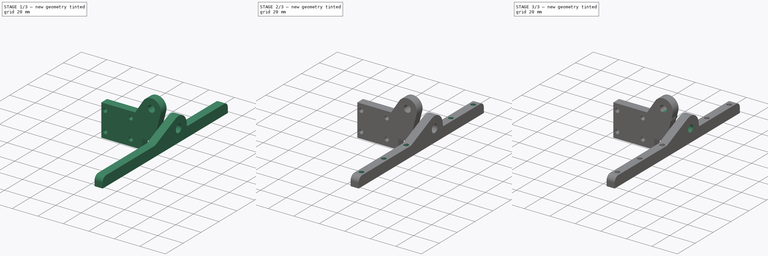
[diagram: build sequence overview — one tinted view per stage of 3, left to right]
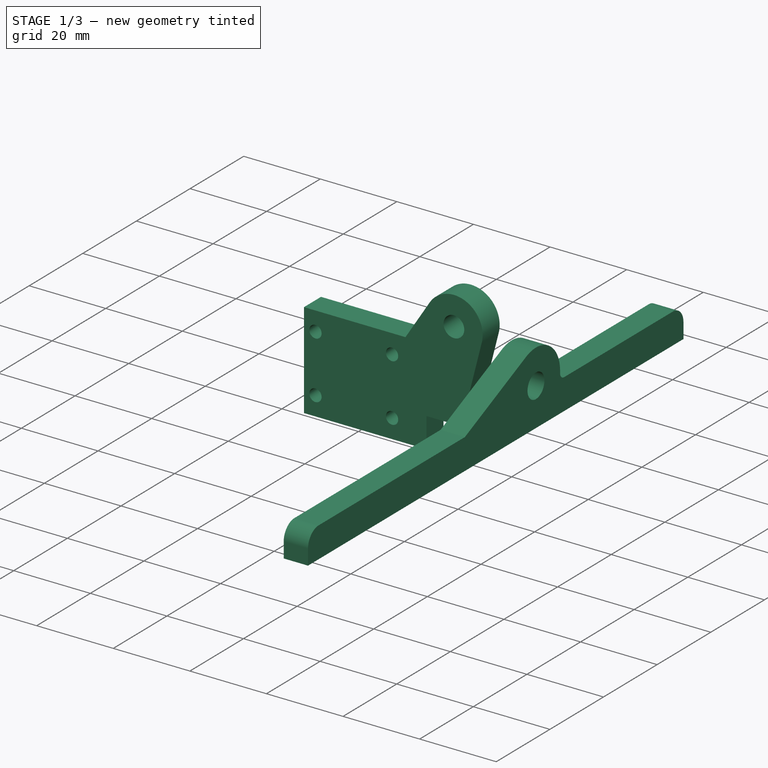
[diagram: stage 1 of 3 — iso view after this stage's code; geometry added in this stage tinted green]
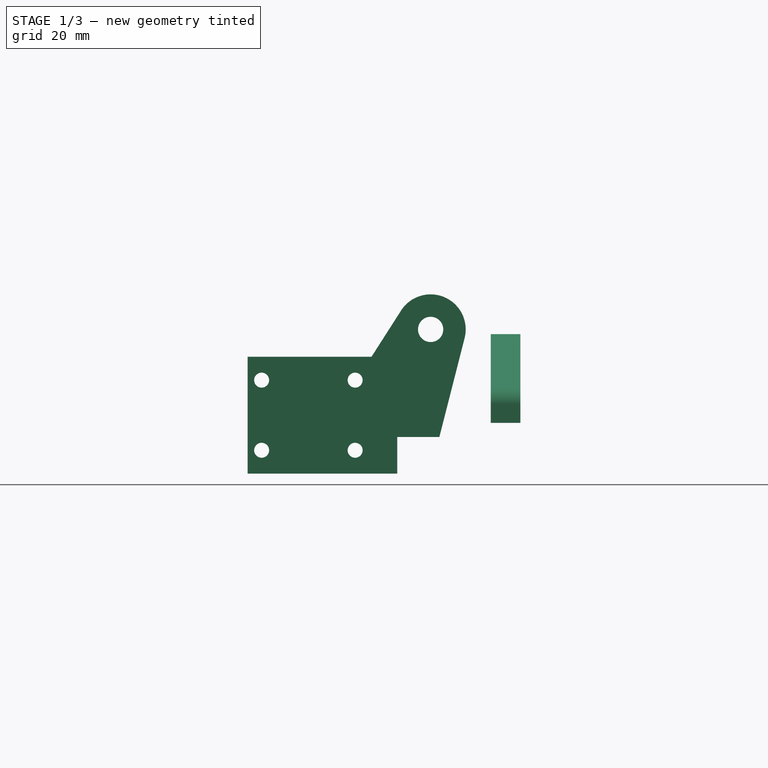
[diagram: stage 1 of 3 — front view after this stage's code; geometry added in this stage tinted green]
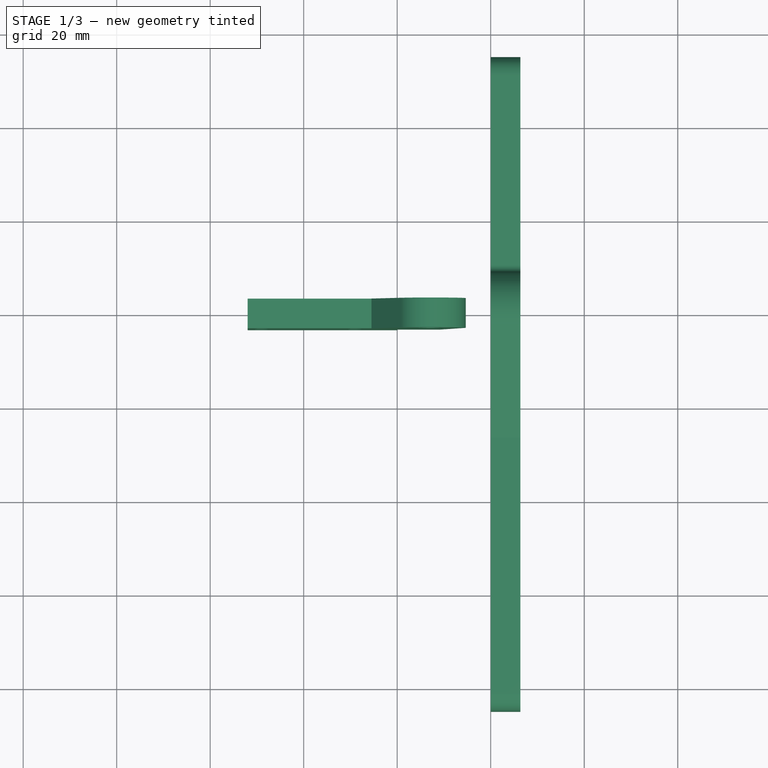
[diagram: stage 1 of 3 — top view after this stage's code; geometry added in this stage tinted green]
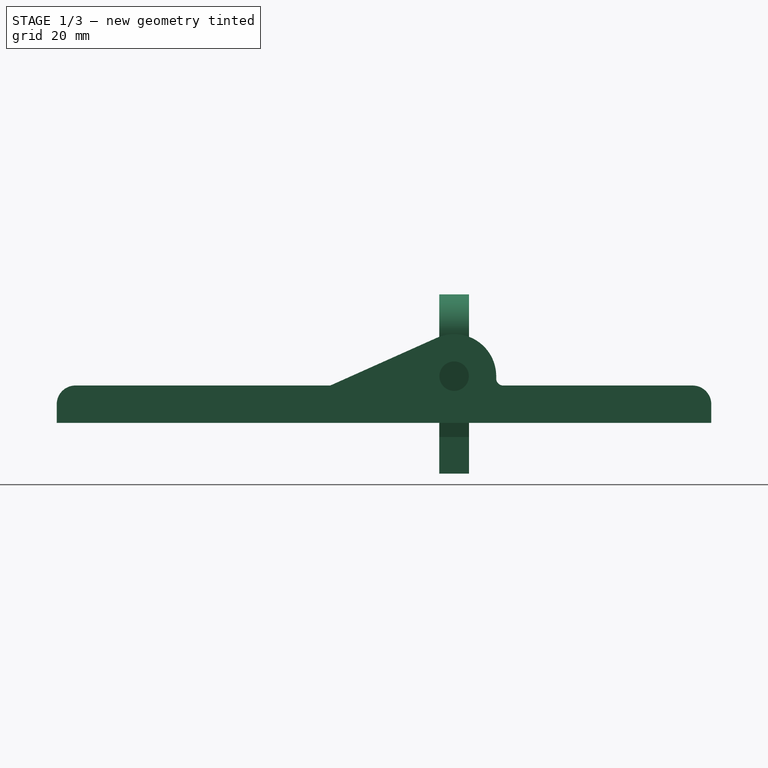
[diagram: stage 1 of 3 — right view after this stage's code; geometry added in this stage tinted green]
FCSTD DOCUMENT  (FreeCAD 0.19R)
Label: BedMount
License: All rights reserved
LicenseURL: http://en.wikipedia.org/wiki/All_rights_reserved
objects: Sketcher::SketchObject×6, PartDesign::Pad×4, PartDesign::Body×4, PartDesign::Pocket×1
note: 20 computed .brp shape members not serialized (recipe doc carries the construction recipe); baked Part::Feature solids carry a one-line shape summary decoded from their .brp

FEATURE [Sketcher::SketchObject] Sketch
  FullyConstrained = false
  MapMode = 5
  Placement = pos=(0,0,0) rot=(0.57735,0.57735,0.57735;2.0944rad)
  Support = -> [YZ_Plane]
  sketch-geometry (17):
    g0: LineSegment StartX=-15 StartY=32.0996 StartZ=0 EndX=-15 EndY=-27.9004 EndZ=0
    g1: LineSegment StartX=55 StartY=0 StartZ=0 EndX=55 EndY=4 EndZ=0
    g2: LineSegment StartX=51 StartY=8 StartZ=0 EndX=10.5 EndY=8 EndZ=0
    g3: LineSegment StartX=-26.4953 StartY=8 StartZ=0 EndX=-81 EndY=8 EndZ=0
    g4: LineSegment StartX=-85 StartY=4 StartZ=0 EndX=-85 EndY=0 EndZ=0
    g5: ArcOfCircle CenterX=0 CenterY=10 CenterZ=0 NormalX=0 NormalY=0 NormalZ=1 AngleXU=0 Radius=9 StartAngle=0 EndAngle=1.99169
    g6: Circle CenterX=0 CenterY=10 CenterZ=0 NormalX=0 NormalY=0 NormalZ=1 AngleXU=0 Radius=3.15
    g7: LineSegment StartX=-85 StartY=0 StartZ=0 EndX=55 EndY=0 EndZ=0
    g8: LineSegment StartX=-26.4953 StartY=8 StartZ=0 EndX=-3.67722 EndY=18.2145 EndZ=0
    g9: LineSegment StartX=-85 StartY=11.5409 StartZ=0 EndX=-85 EndY=8.50152 EndZ=0
    g10: LineSegment StartX=-65 StartY=11.7986 StartZ=0 EndX=-65 EndY=8.61991 EndZ=0
    g11: LineSegment StartX=45 StartY=10.8487 StartZ=0 EndX=45 EndY=7.93263 EndZ=0
    g12: LineSegment StartX=25 StartY=10.7677 StartZ=0 EndX=25 EndY=8.36218 EndZ=0
    g13: LineSegment StartX=9 StartY=10 StartZ=0 EndX=9 EndY=9.5 EndZ=0
    g14: ArcOfCircle CenterX=10.5 CenterY=9.5 CenterZ=0 NormalX=0 NormalY=0 NormalZ=1 AngleXU=0 Radius=1.5 StartAngle=3.14159 EndAngle=4.71239
    g15: ArcOfCircle CenterX=51 CenterY=4 CenterZ=0 NormalX=0 NormalY=0 NormalZ=1 AngleXU=0 Radius=4 StartAngle=0 EndAngle=1.5708
    g16: ArcOfCircle CenterX=-81 CenterY=4 CenterZ=0 NormalX=0 NormalY=0 NormalZ=1 AngleXU=0 Radius=4 StartAngle=1.5708 EndAngle=3.14159
  constraints (39):
    c: Distance(g0) = 60
    c: PointOnObject(g1,g-1)
    c: Symmetric(g4,g1,g0)
    c: Distance(g-1,g0) = 15
    c: Horizontal(g2)
    c: Vertical(g4)
    c: PointOnObject(g5,g-2)
    c: Diameter(g5) = 18
    c: DistanceY(g5) = 10
    c: Vertical(g1)
    c: Coincident(g6,g5)
    c: Diameter(g6) = 6.3
    c: Coincident(g4,g7)
    c: Horizontal(g7)
    c: Horizontal(g3)
    c: Coincident(g8,g3)
    c: Tangent(g8,g5) = 1.5708
    c: Vertical(g9)
    c: Vertical(g11)
    c: Vertical(g10)
    c: Vertical(g12)
    c: Distance(g10,g9) = 20
    c: Distance(g11,g12) = 20
    c: Coincident(g7,g1)
    c: Distance(g7) = 140
    c: Vertical(g13)
    c: Tangent(g13,g5) = 1.5708
    c: Tangent(g2,g14) = 1.5708
    c: Tangent(g13,g14) = -1.5708
    c: Tangent(g2,g15) = -1.5708
    c: Tangent(g1,g15) = -1.5708
    c: Diameter(g15) = 8
    c: Diameter(g14) = 3
    c: Tangent(g4,g16) = -1.5708
    c: Tangent(g3,g16) = -1.5708
    c: Diameter(g16) = 8
    c: DistanceY(g3) = 8
    c: DistanceY(g2) = 8
    c: Distance(g8) = 25
FEATURE [PartDesign::Pad] Pad  label="BedSupport"
  Direction = (1,1,1)
  Length = 6.35
  Length2 = 100
  Placement = pos=(0,0,0) rot=(0.57735,0.57735,0.57735;2.0944rad)
  Profile = -> Sketch
  Type = 0
FEATURE [PartDesign::Body] Body002
  Group = -> [Sketch002,Pad002]
  Origin = -> Origin002
  Tip = -> Pad002
FEATURE [Sketcher::SketchObject] Sketch003
  FullyConstrained = true
  MapMode = 5
  Placement = pos=(0,0,0) rot=(1,0,0;1.5708rad)
  Support = -> [XZ_Plane003]
  sketch-geometry (28):
    g0: Circle CenterX=-12.85 CenterY=20 CenterZ=0 NormalX=0 NormalY=0 NormalZ=1 AngleXU=0 Radius=2.7
    g1: ArcOfCircle CenterX=-12.85 CenterY=20 CenterZ=0 NormalX=0 NormalY=0 NormalZ=1 AngleXU=0 Radius=7.5 StartAngle=6.03331 EndAngle=8.85536
    g2: LineSegment StartX=-19.1666 StartY=24.0436 StartZ=0 EndX=-25.5 EndY=14.15 EndZ=0
    g3: LineSegment StartX=-58 StartY=50 StartZ=0 EndX=-20 EndY=50 EndZ=0
    g4: LineSegment StartX=-20 StartY=50 StartZ=0 EndX=-20 EndY=-50 EndZ=0
    g5: LineSegment StartX=-20 StartY=-50 StartZ=0 EndX=-58 EndY=-50 EndZ=0
    g6: LineSegment StartX=-58 StartY=-50 StartZ=0 EndX=-58 EndY=50 EndZ=0
    g7: Circle CenterX=-12.85 CenterY=20 CenterZ=0 NormalX=0 NormalY=0 NormalZ=1 AngleXU=0 Radius=7.5
    g8: Circle CenterX=-49 CenterY=9.15 CenterZ=0 NormalX=0 NormalY=0 NormalZ=1 AngleXU=0 Radius=1.6
    g9: Circle CenterX=-29 CenterY=9.15 CenterZ=0 NormalX=0 NormalY=0 NormalZ=1 AngleXU=0 Radius=1.6
    g10: Circle CenterX=-49 CenterY=-5.85 CenterZ=0 NormalX=0 NormalY=0 NormalZ=1 AngleXU=0 Radius=1.6
    g11: Circle CenterX=-29 CenterY=-5.85 CenterZ=0 NormalX=0 NormalY=0 NormalZ=1 AngleXU=0 Radius=1.6
    g12: LineSegment StartX=-49 StartY=9.15 StartZ=0 EndX=-29 EndY=9.15 EndZ=0
    g13: LineSegment StartX=-29 StartY=9.15 StartZ=0 EndX=-29 EndY=-5.85 EndZ=0
    g14: LineSegment StartX=-29 StartY=-5.85 StartZ=0 EndX=-49 EndY=-5.85 EndZ=0
    g15: LineSegment StartX=-49 StartY=-5.85 StartZ=0 EndX=-49 EndY=9.15 EndZ=0
    g16: LineSegment StartX=-52.5 StartY=19 StartZ=0 EndX=-25.5 EndY=19 EndZ=0
    g17: LineSegment StartX=-25.5 StartY=19 StartZ=0 EndX=-25.5 EndY=-15.7 EndZ=0
    g18: LineSegment StartX=-25.5 StartY=-15.7 StartZ=0 EndX=-52.5 EndY=-15.7 EndZ=0
    g19: LineSegment StartX=-52.5 StartY=-15.7 StartZ=0 EndX=-52.5 EndY=19 EndZ=0
    g20: Circle CenterX=-39 CenterY=1.65 CenterZ=0 NormalX=0 NormalY=0 NormalZ=1 AngleXU=0 Radius=0.515
    g21: LineSegment StartX=-39 StartY=1.65 StartZ=0 EndX=-39 EndY=76.65 EndZ=0
    g22: LineSegment StartX=-52 StartY=14.15 StartZ=0 EndX=-25.5 EndY=14.15 EndZ=0
    g23: LineSegment StartX=-52 StartY=-10.85 StartZ=0 EndX=-20 EndY=-10.85 EndZ=0
    g24: LineSegment StartX=-52 StartY=14.15 StartZ=0 EndX=-52 EndY=-10.85 EndZ=0
    g25: LineSegment StartX=-5.58292 StartY=18.1454 StartZ=0 EndX=-10.9794 EndY=-3 EndZ=0
    g26: LineSegment StartX=-10.9794 StartY=-3 StartZ=0 EndX=-20 EndY=-3 EndZ=0
    g27: LineSegment StartX=-20 StartY=-3 StartZ=0 EndX=-20 EndY=-10.85 EndZ=0
  constraints (73):
    c: DistanceY(g0) = 20
    c: DistanceX(g0) = -12.85
    c: Coincident(g1,g0)
    c: Tangent(g1,g2) = -1.5708
    c: Diameter(g1) = 15
    c: Coincident(g3,g4)
    c: Coincident(g4,g5)
    c: Coincident(g5,g6)
    c: Coincident(g6,g3)
    c: Horizontal(g3)
    c: Vertical(g6)
    c: Distance(g3) = 38
    c: Coincident(g7,g0)
    c: Diameter(g7) = 15
    c: DistanceX(g4) = -20
    c: Coincident(g12,g8)
    c: Coincident(g12,g9)
    c: Horizontal(g12)
    c: Coincident(g12,g13)
    c: Coincident(g13,g11)
    c: Coincident(g13,g14)
    c: Coincident(g14,g10)
    c: Coincident(g14,g15)
    c: Coincident(g15,g12)
    c: Equal(g12,g14)
    c: Equal(g13,g15)
    c: Vertical(g13)
    c: Diameter(g11) = 3.2
    c: Equal(g11,g9)
    c: Equal(g11,g8)
    c: Equal(g11,g10)
    c: Distance(g12) = 20
    c: Distance(g13) = 15
    c: Coincident(g16,g17)
    c: Coincident(g17,g18)
    c: Coincident(g18,g19)
    c: Coincident(g19,g16)
    c: Horizontal(g16)
    c: Horizontal(g18)
    c: Vertical(g17)
    c: Vertical(g19)
    c: Distance(g18) = 27
    c: Distance(g17) = 34.7
    c: Distance(g4) = 100
    c: Symmetric(g4,g3,g-1)
    c: Symmetric(g11,g8,g20)
    c: Symmetric(g17,g16,g20)
    c: DistanceY(g16) = 19
    c: Horizontal(g5)
    c: Coincident(g21,g20)
    c: Symmetric(g3,g3,g21)
    c: Distance(g21) = 75
    c: Diameter(g20) = 1.03
    c: Horizontal(g22)
    c: Horizontal(g23)
    c: Coincident(g2,g22)
    c: Distance(g9,g22) = 5
    c: Distance(g11,g23) = 5
    c: PointOnObject(g2,g17)
    c: DistanceX(g22,g8) = 3
    c: Diameter(g0) = 5.4
    c: Coincident(g22,g24)
    c: Vertical(g24)
    c: DistanceX(g23,g10) = 3
    c: Coincident(g24,g23)
    c: Tangent(g1,g25) = 1.5708
    c: Coincident(g25,g26)
    c: PointOnObject(g26,g4)
    c: Horizontal(g26)
    c: Coincident(g26,g27)
    c: PointOnObject(g27,g4)
    c: Coincident(g23,g27)
    c: DistanceY(g26) = -3
FEATURE [PartDesign::Pad] Pad003
  Direction = (1,1,1)
  Length = 6.35
  Length2 = 100
  Midplane = true
  Placement = pos=(0,0,0) rot=(1,0,0;1.5708rad)
  Profile = -> Sketch003
  Reversed = true
  Type = 0
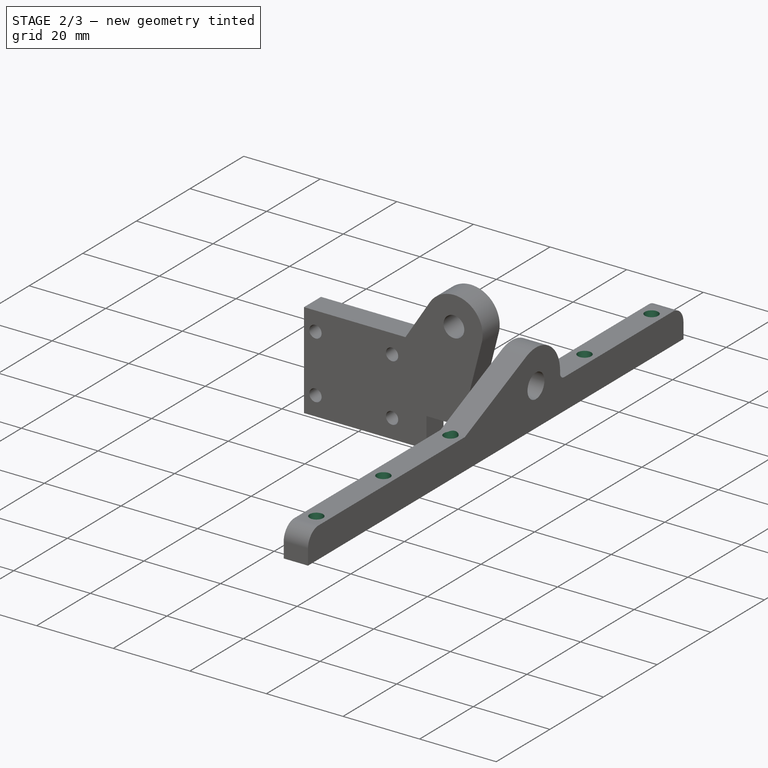
[diagram: stage 2 of 3 — iso view after this stage's code; geometry added in this stage tinted green]
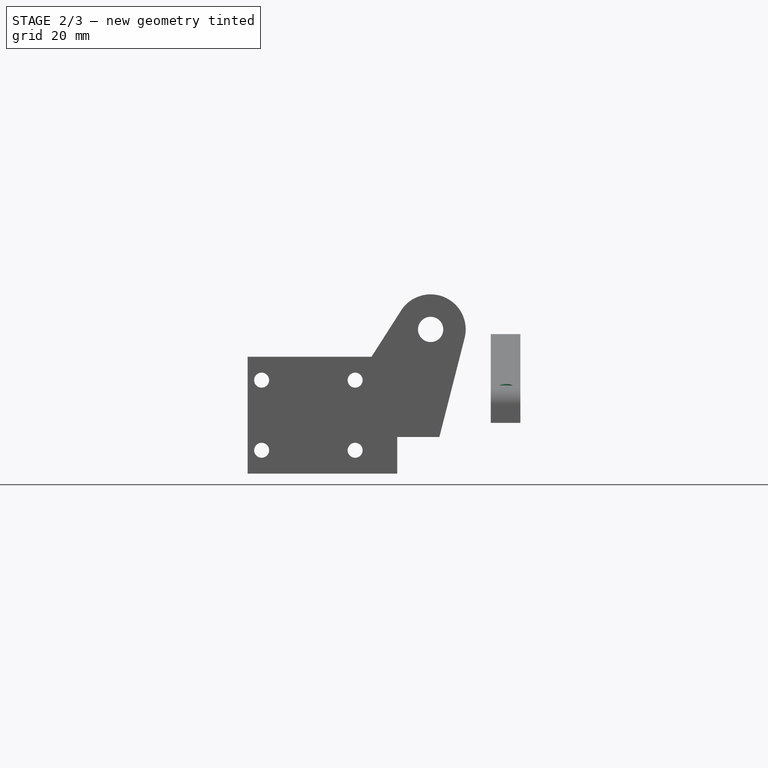
[diagram: stage 2 of 3 — front view after this stage's code; geometry added in this stage tinted green]
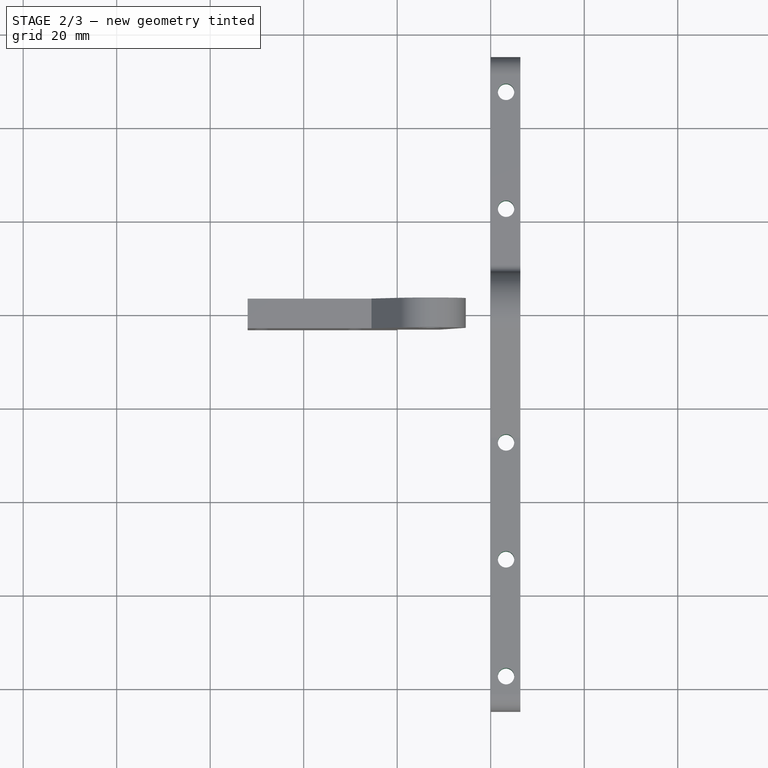
[diagram: stage 2 of 3 — top view after this stage's code; geometry added in this stage tinted green]
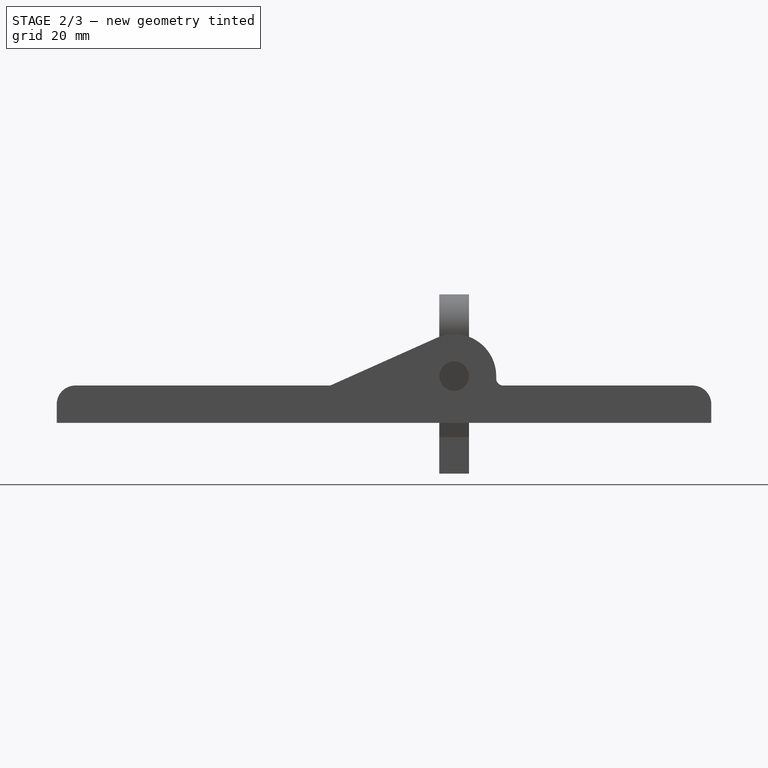
[diagram: stage 2 of 3 — right view after this stage's code; geometry added in this stage tinted green]
FEATURE [Sketcher::SketchObject] Sketch004
  FullyConstrained = false
  MapMode = 5
  Placement = pos=(0,0,0) rot=(0.707107,0.707107,0;3.14159rad)
  Support = -> [Pad]
  sketch-geometry (6):
    g0: Circle CenterX=-77.5 CenterY=3.28 CenterZ=0 NormalX=0 NormalY=0 NormalZ=1 AngleXU=0 Radius=1.75
    g1: Circle CenterX=-52.5 CenterY=3.28 CenterZ=0 NormalX=0 NormalY=0 NormalZ=1 AngleXU=0 Radius=1.75
    g2: Circle CenterX=-27.5 CenterY=3.28 CenterZ=0 NormalX=0 NormalY=0 NormalZ=1 AngleXU=0 Radius=1.75
    g3: Circle CenterX=47.5 CenterY=3.28 CenterZ=0 NormalX=0 NormalY=0 NormalZ=1 AngleXU=0 Radius=1.75
    g4: Circle CenterX=22.5 CenterY=3.28 CenterZ=0 NormalX=0 NormalY=0 NormalZ=1 AngleXU=0 Radius=1.75
    g5: LineSegment StartX=-15 StartY=26.8347 StartZ=0 EndX=-15 EndY=-18.7182 EndZ=0
  constraints (13):
    c: DistanceY(g0) = 3.28
    c: DistanceY(g1) = 3.28
    c: DistanceY(g2) = 3.28
    c: DistanceY(g4) = 3.28
    c: Equal(g0, g1-g4) x4
    c: Diameter(g1) = 3.5
    c: DistanceX(g4,g3) = 25
    c: Distance(g0,g1) = 25
    c: Distance(g1,g2) = 25
    c: Distance(g4,g2) = 50
    c: Vertical(g5)
    c: DistanceX(g5) = -15
    c: Symmetric(g0,g3,g5)
FEATURE [PartDesign::Pocket] Pocket
  BaseFeature = -> Pad
  Length = 5
  Length2 = 100
  Placement = pos=(0,0,0) rot=(0.57735,0.57735,0.57735;2.0944rad)
  Profile = -> Sketch004
  Type = 1
FEATURE [PartDesign::Body] Body
  Group = -> [Sketch,Pad,Sketch004,Pocket]
  Origin = -> Origin
  Tip = -> Pocket
FEATURE [Sketcher::SketchObject] Sketch005
  FullyConstrained = false
  MapMode = 5
  Placement = pos=(0,-3.175,0) rot=(1,0,0;1.5708rad)
  Support = -> [Pad003]
  sketch-geometry (5):
    g0: LineSegment StartX=-20 StartY=-3 StartZ=0 EndX=-5.70339 EndY=-3 EndZ=0
    g1: LineSegment StartX=-5.70339 StartY=-3 StartZ=0 EndX=-5.70339 EndY=-14.8209 EndZ=0
    g2: LineSegment StartX=-5.70339 StartY=-14.8209 StartZ=0 EndX=-20 EndY=-14.8209 EndZ=0
    g3: LineSegment StartX=-20 StartY=-14.8209 StartZ=0 EndX=-20 EndY=-3 EndZ=0
    g4: LineSegment StartX=-39 StartY=20.665 StartZ=0 EndX=-39 EndY=-25.8278 EndZ=0
  constraints (10):
    c: Coincident(g0,g1)
    c: Coincident(g1,g2)
    c: Coincident(g2,g3)
    c: Coincident(g3,g0)
    c: Horizontal(g0)
    c: Horizontal(g2)
    c: Vertical(g1)
    c: Vertical(g3)
    c: Distance(g0,g4) = 19
    c: DistanceY(g0) = -3
FEATURE [PartDesign::Body] Body003  label="MGNMount"
  Group = -> [Sketch003,Pad003,Sketch005]
  Origin = -> Origin003
  Placement = pos=(-0.5,6.35,-10) rot=(0,0,1;0rad)
  Tip = -> Pad003
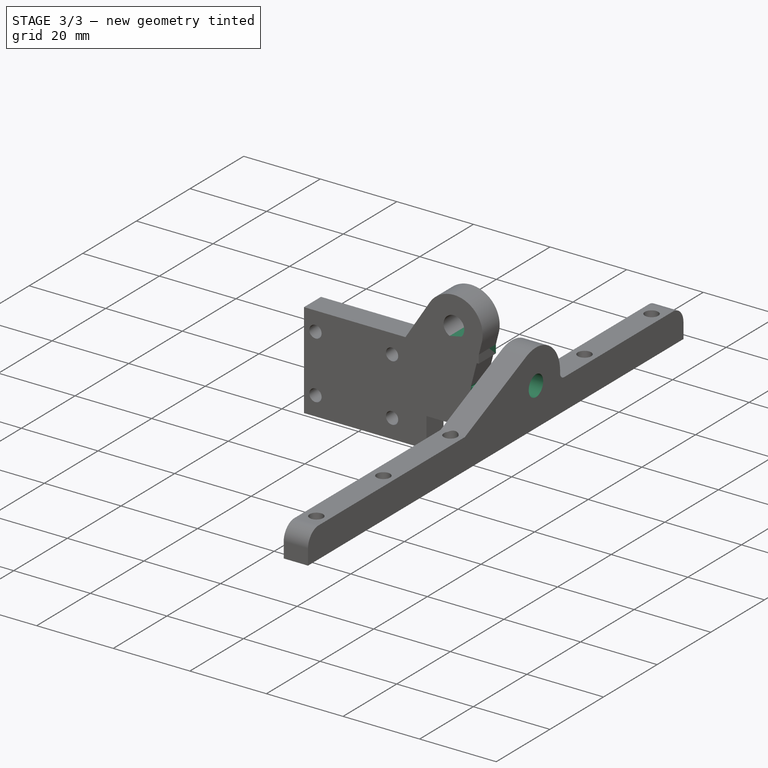
[diagram: stage 3 of 3 — iso view after this stage's code; geometry added in this stage tinted green]
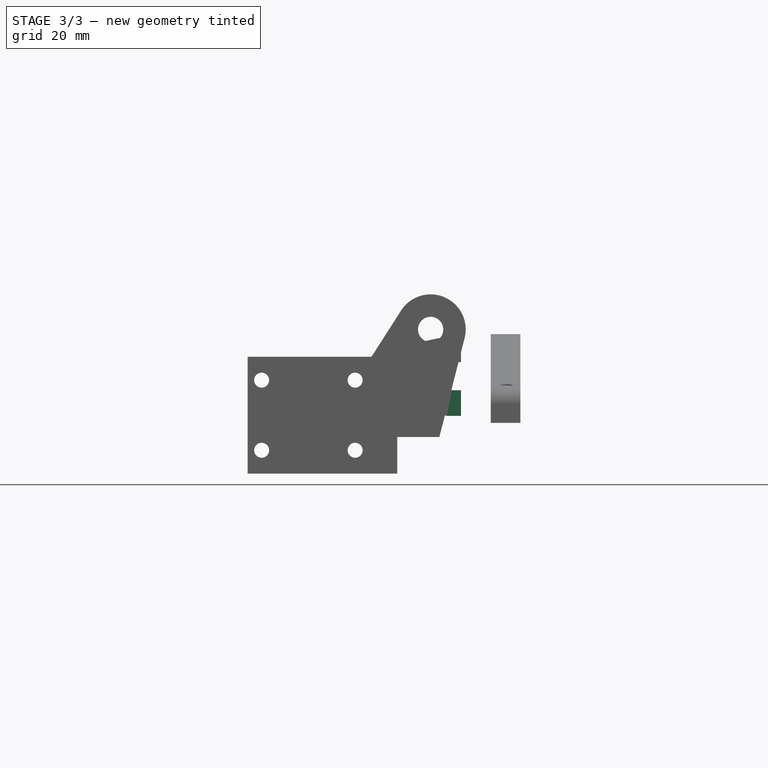
[diagram: stage 3 of 3 — front view after this stage's code; geometry added in this stage tinted green]
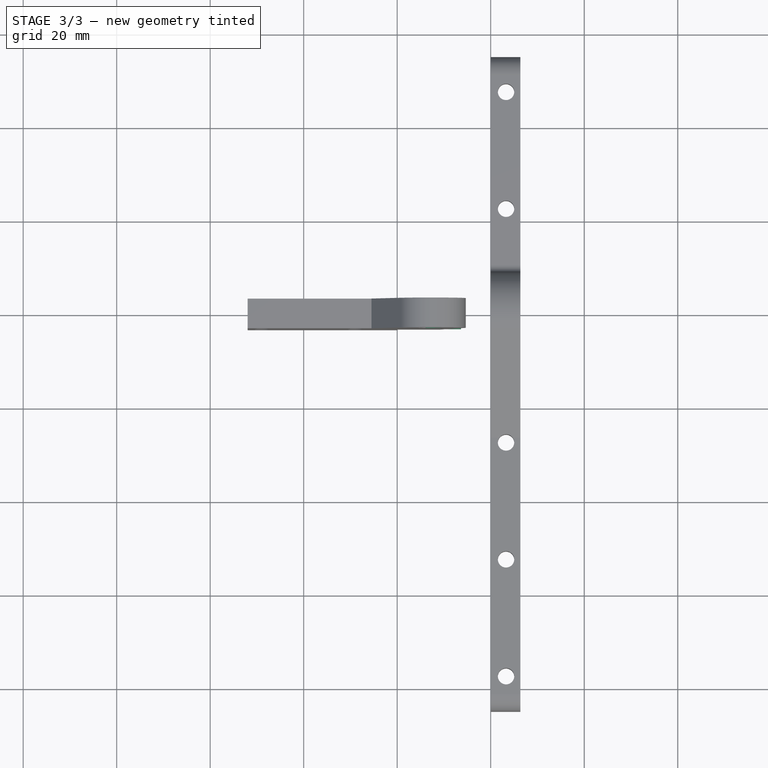
[diagram: stage 3 of 3 — top view after this stage's code; geometry added in this stage tinted green]
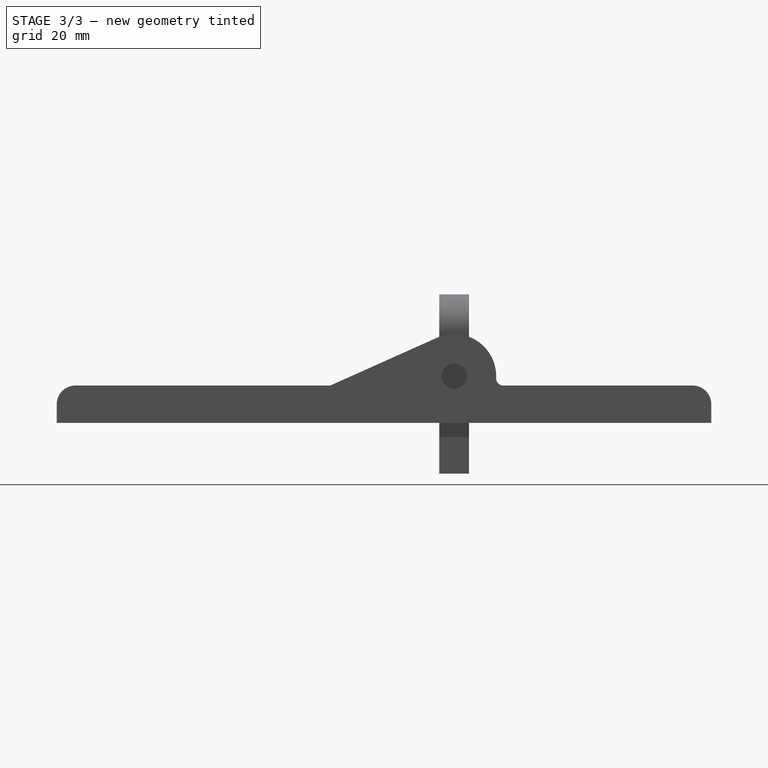
[diagram: stage 3 of 3 — right view after this stage's code; geometry added in this stage tinted green]
FEATURE [Sketcher::SketchObject] Sketch001
  FullyConstrained = true
  MapMode = 5
  Placement = pos=(0,0,0) rot=(0.57735,0.57735,0.57735;2.0944rad)
  Support = -> [YZ_Plane001]
  sketch-geometry (2):
    g0: Circle CenterX=0 CenterY=10 CenterZ=0 NormalX=0 NormalY=0 NormalZ=1 AngleXU=0 Radius=9
    g1: Circle CenterX=0 CenterY=10 CenterZ=0 NormalX=0 NormalY=0 NormalZ=1 AngleXU=0 Radius=2.7
  constraints (5):
    c: PointOnObject(g0,g-2)
    c: Diameter(g0) = 18
    c: DistanceY(g0) = 10
    c: Coincident(g1,g0)
    c: Diameter(g1) = 5.4
FEATURE [PartDesign::Pad] Pad001  label="Washer"
  Direction = (1,1,1)
  Length = 6.35
  Length2 = 100
  Placement = pos=(0,0,0) rot=(0.57735,0.57735,0.57735;2.0944rad)
  Profile = -> Sketch001
  Type = 0
FEATURE [PartDesign::Body] Body001  label="washer"
  Group = -> [Sketch001,Pad001]
  Origin = -> Origin001
  Placement = pos=(-6.35,0,0) rot=(0,0,1;0rad)
  Tip = -> Pad001
FEATURE [Sketcher::SketchObject] Sketch002
  FullyConstrained = true
  MapMode = 5
  Placement = pos=(0,0,0) rot=(1,0,0;1.5708rad)
  Support = -> [XZ_Plane002]
  sketch-geometry (11):
    g0: LineSegment StartX=-6.35 StartY=18.5 StartZ=0 EndX=-9.35 EndY=18.5 EndZ=0
    g1: LineSegment StartX=-9.35 StartY=18.5 StartZ=0 EndX=-14.8868 EndY=17.3409 EndZ=0
    g2: LineSegment StartX=-14.8868 StartY=2.65914 StartZ=0 EndX=-9.35 EndY=1.5 EndZ=0
    g3: LineSegment StartX=-9.35 StartY=1.5 StartZ=0 EndX=-6.35 EndY=1.5 EndZ=0
    g4: LineSegment StartX=-6.35 StartY=18.5 StartZ=0 EndX=-6.35 EndY=13 EndZ=0
    g5: LineSegment StartX=-6.35 StartY=1.5 StartZ=0 EndX=-6.35 EndY=7 EndZ=0
    g6: ArcOfCircle CenterX=-13.35 CenterY=10 CenterZ=0 NormalX=0 NormalY=0 NormalZ=1 AngleXU=0 Radius=7.5 StartAngle=1.77717 EndAngle=4.50602
    g7: Circle CenterX=-13.35 CenterY=10 CenterZ=0 NormalX=0 NormalY=0 NormalZ=1 AngleXU=0 Radius=3.1
    g8: LineSegment StartX=-6.35 StartY=13 StartZ=0 EndX=-8.35 EndY=13 EndZ=0
    g9: LineSegment StartX=-8.35 StartY=13 StartZ=0 EndX=-8.35 EndY=7 EndZ=0
    g10: LineSegment StartX=-8.35 StartY=7 StartZ=0 EndX=-6.35 EndY=7 EndZ=0
  constraints (31):
    c: Horizontal(g0)
    c: Coincident(g0,g1)
    c: Coincident(g2,g3)
    c: Coincident(g0,g4)
    c: Vertical(g4)
    c: Coincident(g3,g5)
    c: Vertical(g5)
    c: Coincident(g7,g6)
    c: Diameter(g7) = 6.2
    c: Diameter(g6) = 15
    c: Tangent(g1,g6) = -1.5708
    c: Tangent(g2,g6) = -1.5708
    c: DistanceY(g6) = 10
    c: Coincident(g4,g8)
    c: Coincident(g8,g9)
    c: Vertical(g9)
    c: Coincident(g9,g10)
    c: Coincident(g10,g5)
    c: Horizontal(g3)
    c: Distance(g0,g3) = 17
    c: Equal(g5,g4)
    c: Horizontal(g10)
    c: Horizontal(g8)
    c: Distance(g8) = 2
    c: DistanceX(g3) = -6.35
    c: DistanceX(g0) = -6.35
    c: Distance(g9) = 6
    c: Distance(g0) = 3
    c: Distance(g3) = 3
    c: DistanceX(g6,g0) = 7
    c: DistanceY(g3) = 1.5
FEATURE [PartDesign::Pad] Pad002  label="Yoke"
  Direction = (1,1,1)
  Length = 6.35
  Length2 = 100
  Midplane = true
  Placement = pos=(0,0,0) rot=(1,0,0;1.5708rad)
  Profile = -> Sketch002
  Type = 0
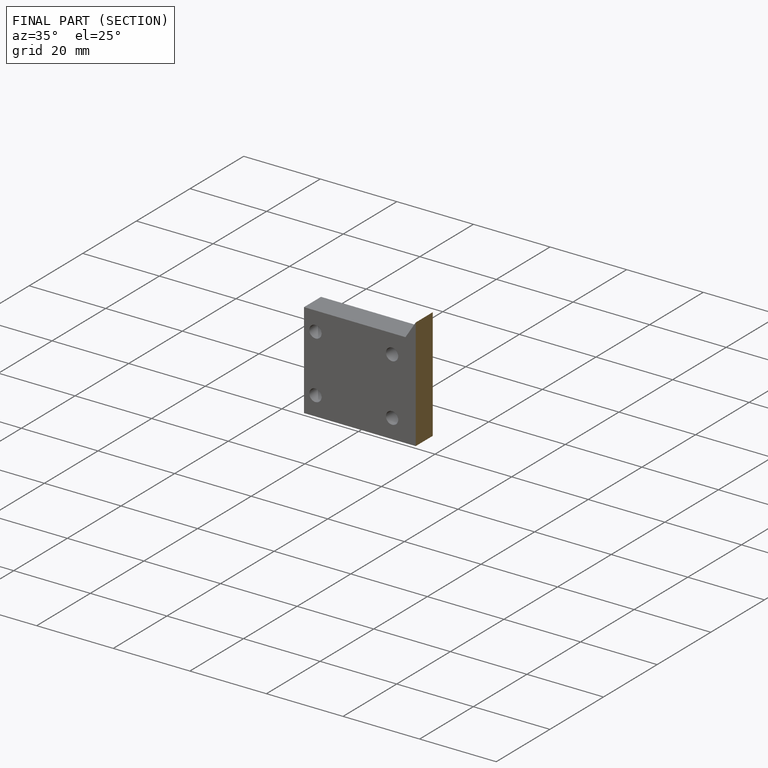
[diagram: finished part — half-section view (interior)]
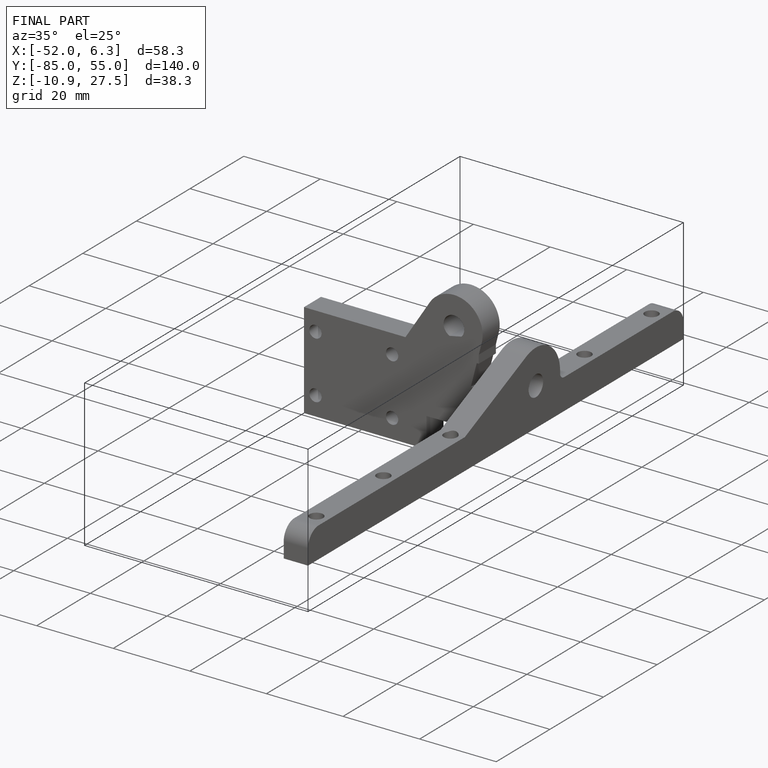
[diagram: finished part — iso view with bounding-box wireframe]
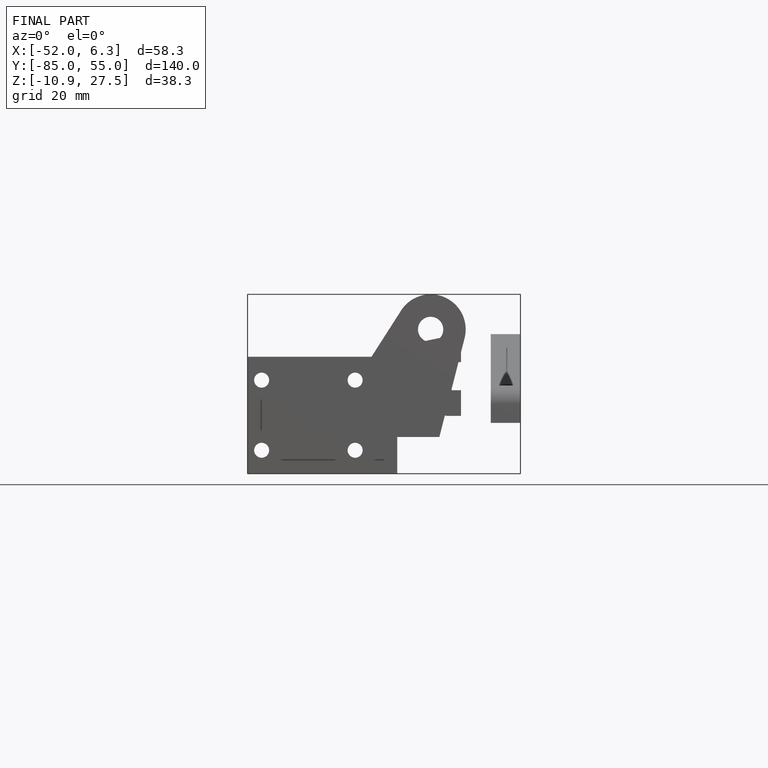
[diagram: finished part — front view with bounding-box wireframe]
